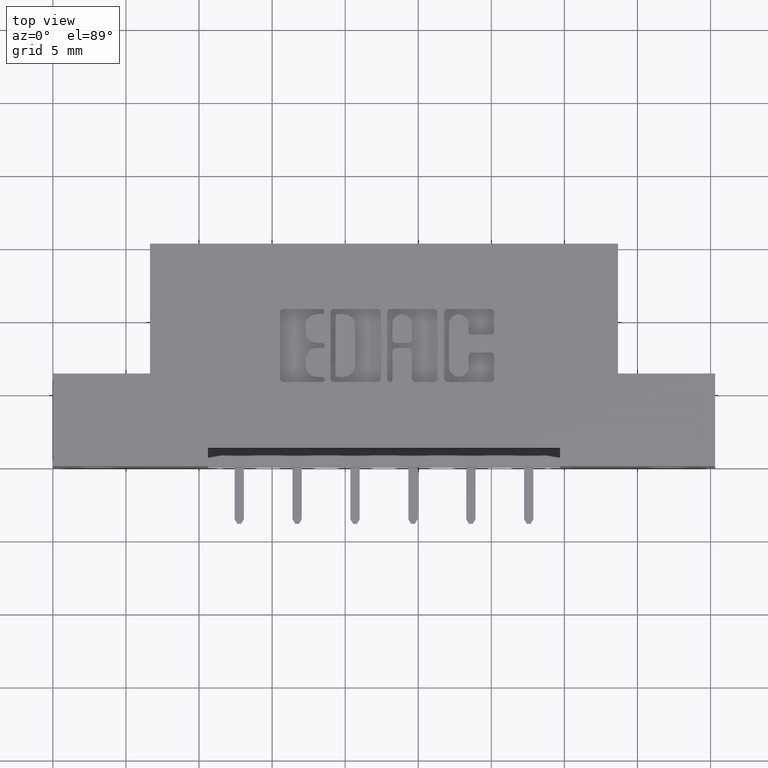
[diagram: clean part render]
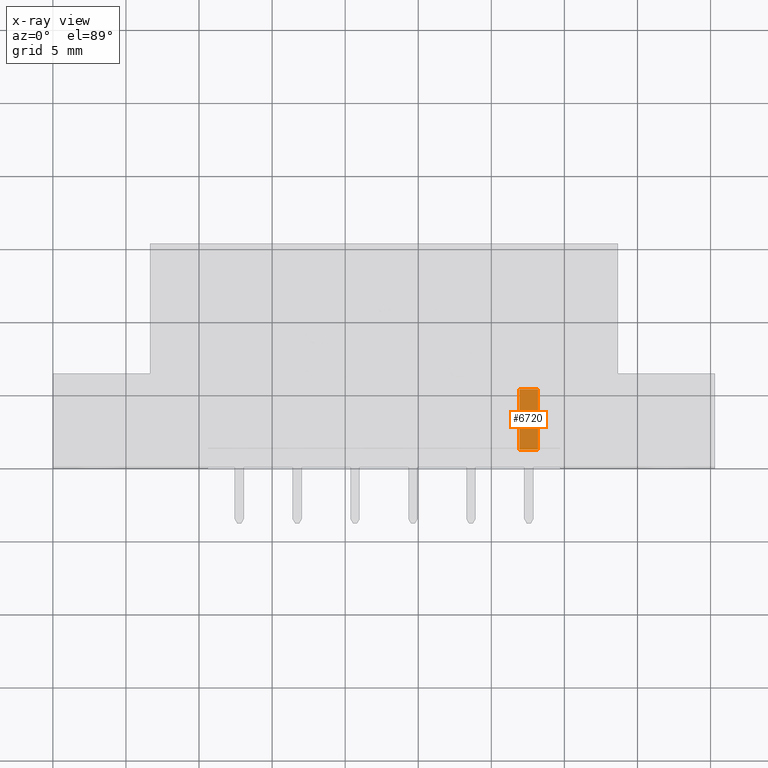
[diagram: x-ray — body ghosted, one internal face saturated and labeled with its STEP entity id]
A machine part, top view, then the same camera in x-ray: the body is ghosted and one INTERNAL B-rep face — a face not visible from any outside direction — is saturated and labeled: STEP entity #6720.
In plain terms, the highlighted planar face has unit normal (0, -0, 1).
Its self-contained STEP definition (entity closure, byte-faithful):
#121 = PLANE ( 'NONE',  #521 ) ;
#124 = CARTESIAN_POINT ( 'NONE',  ( 1.256999999999999673, 0.2119999999999999385, -0.2724999999999999645 ) ) ;
#333 = EDGE_CURVE ( 'NONE', #6211, #7041, #6607, .T. ) ;
#521 = AXIS2_PLACEMENT_3D ( 'NONE', #3420, #1355, #2710 ) ;
#612 = CARTESIAN_POINT ( 'NONE',  ( 1.256999999999999673, 0.2119999999999999385, -0.2724999999999999645 ) ) ;
#1355 = DIRECTION ( 'NONE',  ( 0.0000000000000000000, -3.221518860453141369E-16, 1.000000000000000000 ) ) ;
#2297 = VECTOR ( 'NONE', #2779, 39.37007874015748143 ) ;
#2456 = VERTEX_POINT ( 'NONE', #3624 ) ;
#2532 = ORIENTED_EDGE ( 'NONE', *, *, #3682, .F. ) ;
#2710 = DIRECTION ( 'NONE',  ( 0.0000000000000000000, -1.000000000000000000, -3.221518860453141369E-16 ) ) ;
#2779 = DIRECTION ( 'NONE',  ( 0.0000000000000000000, -1.000000000000000000, -3.221518860453141369E-16 ) ) ;
#3037 = CARTESIAN_POINT ( 'NONE',  ( 1.256999999999999673, 0.2119999999999999385, -0.2724999999999999645 ) ) ;
#3420 = CARTESIAN_POINT ( 'NONE',  ( 1.256999999999999673, 0.2119999999999999385, -0.2724999999999999645 ) ) ;
#3439 = ORIENTED_EDGE ( 'NONE', *, *, #4600, .F. ) ;
#3624 = CARTESIAN_POINT ( 'NONE',  ( 1.256999999999999673, 0.05000000000000000971, -0.2725000000000000200 ) ) ;
#3682 = EDGE_CURVE ( 'NONE', #2456, #8079, #5363, .T. ) ;
#3795 = EDGE_CURVE ( 'NONE', #7041, #8079, #5992, .T. ) ;
#4320 = ORIENTED_EDGE ( 'NONE', *, *, #3795, .T. ) ;
#4600 = EDGE_CURVE ( 'NONE', #6211, #2456, #5034, .T. ) ;
#5001 = VECTOR ( 'NONE', #7941, 39.37007874015748143 ) ;
#5034 = LINE ( 'NONE', #612, #7536 ) ;
#5324 = CARTESIAN_POINT ( 'NONE',  ( 1.366500000000000936, 0.05000000000000000278, -0.2725000000000000200 ) ) ;
#5363 = LINE ( 'NONE', #5324, #5001 ) ;
#5421 = DIRECTION ( 'NONE',  ( 1.000000000000000000, -0.0000000000000000000, -0.0000000000000000000 ) ) ;
#5448 = CARTESIAN_POINT ( 'NONE',  ( 1.306999999999999718, 0.2119999999999999385, -0.2724999999999999645 ) ) ;
#5920 = FACE_OUTER_BOUND ( 'NONE', #8274, .T. ) ;
#5992 = LINE ( 'NONE', #5448, #2297 ) ;
#6010 = ORIENTED_EDGE ( 'NONE', *, *, #333, .T. ) ;
#6116 = VECTOR ( 'NONE', #5421, 39.37007874015748143 ) ;
#6211 = VERTEX_POINT ( 'NONE', #3037 ) ;
#6411 = DIRECTION ( 'NONE',  ( 0.0000000000000000000, -1.000000000000000000, -3.221518860453141369E-16 ) ) ;
#6518 = CARTESIAN_POINT ( 'NONE',  ( 1.306999999999999718, 0.05000000000000000971, -0.2725000000000000200 ) ) ;
#6607 = LINE ( 'NONE', #124, #6116 ) ;
#6720 = ADVANCED_FACE ( 'NONE', ( #5920 ), #121, .F. ) ;
#7041 = VERTEX_POINT ( 'NONE', #7607 ) ;
#7536 = VECTOR ( 'NONE', #6411, 39.37007874015748143 ) ;
#7607 = CARTESIAN_POINT ( 'NONE',  ( 1.306999999999999718, 0.2119999999999999385, -0.2724999999999999645 ) ) ;
#7941 = DIRECTION ( 'NONE',  ( 1.000000000000000000, 0.0000000000000000000, 0.0000000000000000000 ) ) ;
#8079 = VERTEX_POINT ( 'NONE', #6518 ) ;
#8274 = EDGE_LOOP ( 'NONE', ( #3439, #6010, #4320, #2532 ) ) ;